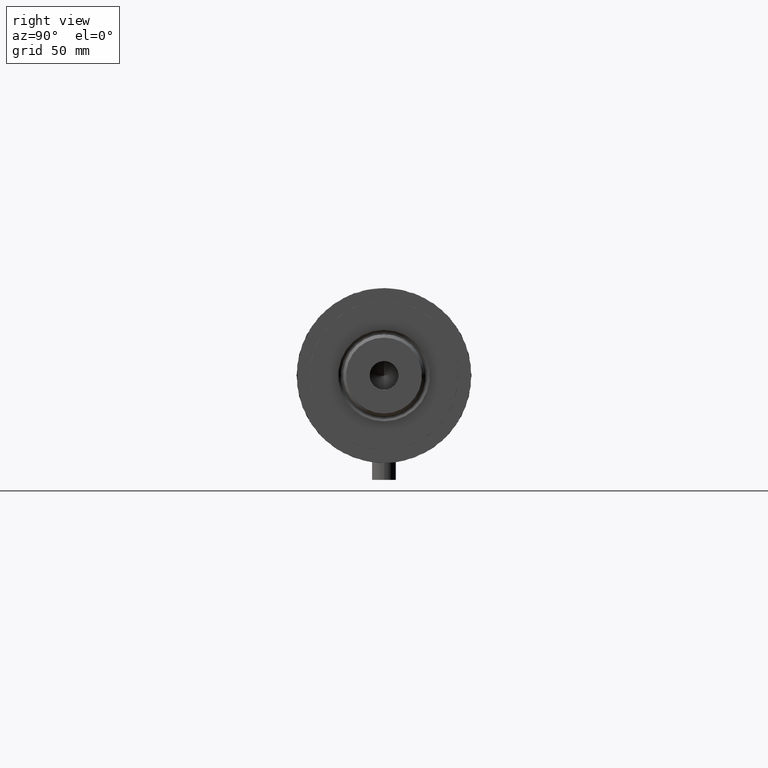
[diagram: clean part render]
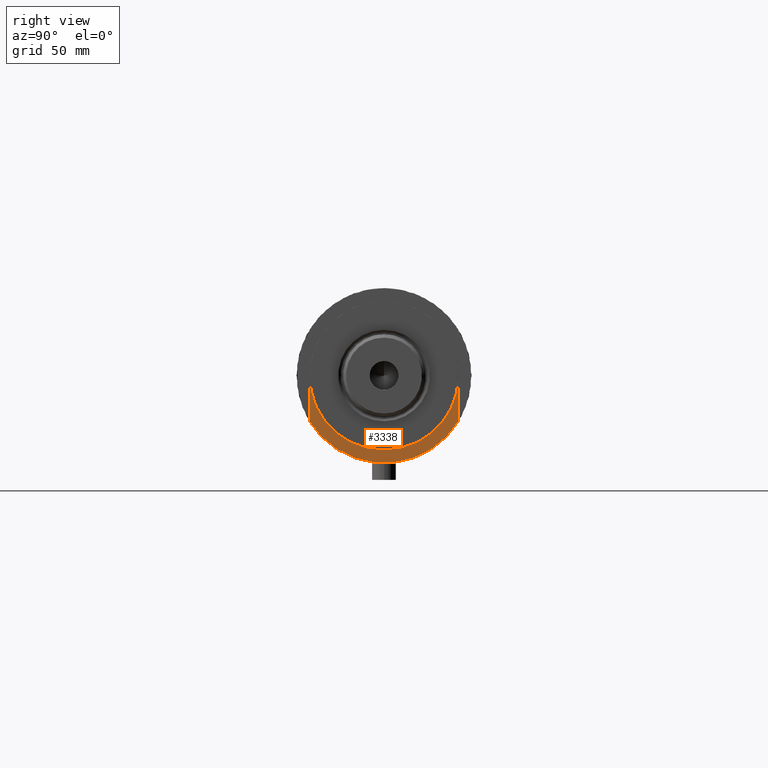
[diagram: same view with one face highlighted and labeled with its STEP entity id]
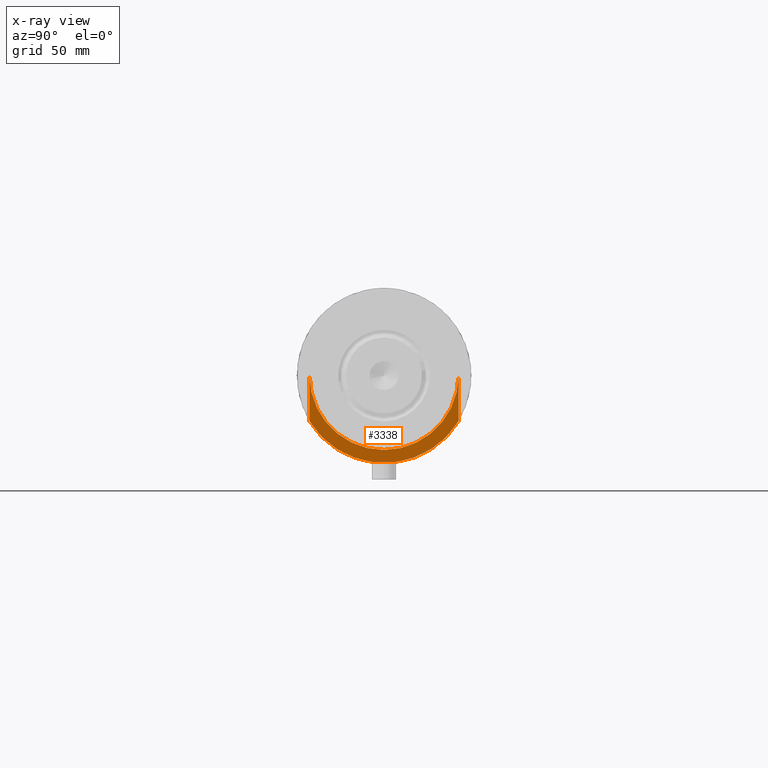
[diagram: x-ray of the same camera — body ghosted, the highlighted face saturated]
A machine part, right view. The second image highlights one B-rep face of the part: STEP entity #3338.
The next image is the same camera in x-ray: the body ghosted, the highlighted face saturated — about 0% of this face is hidden behind the body in this view.
In plain terms, the highlighted planar face has unit normal (1, 0, -0).
Its self-contained STEP definition (entity closure, byte-faithful):
#49 = CIRCLE ( 'NONE', #2913, 44.00000000000000000 ) ;
#72 = ORIENTED_EDGE ( 'NONE', *, *, #2926, .T. ) ;
#100 = CARTESIAN_POINT ( 'NONE',  ( -23.01629857296780557, -37.50000000000000000, 27.89999999999999858 ) ) ;
#135 = CARTESIAN_POINT ( 'NONE',  ( 23.01629857296780557, 37.50000000000000000, 27.89999999999999858 ) ) ;
#242 = EDGE_CURVE ( 'NONE', #4375, #1506, #1234, .T. ) ;
#333 = DIRECTION ( 'NONE',  ( 0.000000000000000000, 0.000000000000000000, 1.000000000000000000 ) ) ;
#379 = CARTESIAN_POINT ( 'NONE',  ( 0.000000000000000000, 37.50000000000000000, 27.89999999999999858 ) ) ;
#421 = DIRECTION ( 'NONE',  ( 1.000000000000000000, 0.000000000000000000, 0.000000000000000000 ) ) ;
#455 = VERTEX_POINT ( 'NONE', #3279 ) ;
#572 = AXIS2_PLACEMENT_3D ( 'NONE', #689, #333, #635 ) ;
#635 = DIRECTION ( 'NONE',  ( 1.000000000000000000, 0.000000000000000000, -0.000000000000000000 ) ) ;
#639 = DIRECTION ( 'NONE',  ( 1.000000000000000000, 0.000000000000000000, 0.000000000000000000 ) ) ;
#689 = CARTESIAN_POINT ( 'NONE',  ( 0.000000000000000000, 0.000000000000000000, 27.89999999999999858 ) ) ;
#714 = ORIENTED_EDGE ( 'NONE', *, *, #4322, .T. ) ;
#793 = CARTESIAN_POINT ( 'NONE',  ( 0.000000000000000000, 0.000000000000000000, 27.89999999999999858 ) ) ;
#918 = DIRECTION ( 'NONE',  ( 1.000000000000000000, 0.000000000000000000, 0.000000000000000000 ) ) ;
#1081 = PLANE ( 'NONE',  #572 ) ;
#1173 = EDGE_CURVE ( 'NONE', #4375, #4109, #3411, .T. ) ;
#1234 = CIRCLE ( 'NONE', #4521, 37.50000000000000000 ) ;
#1327 = AXIS2_PLACEMENT_3D ( 'NONE', #2654, #4060, #918 ) ;
#1410 = ORIENTED_EDGE ( 'NONE', *, *, #1173, .F. ) ;
#1426 = FACE_OUTER_BOUND ( 'NONE', #3452, .T. ) ;
#1506 = VERTEX_POINT ( 'NONE', #3105 ) ;
#1509 = ORIENTED_EDGE ( 'NONE', *, *, #242, .T. ) ;
#1537 = DIRECTION ( 'NONE',  ( -1.000000000000000000, -0.000000000000000000, -0.000000000000000000 ) ) ;
#1581 = ORIENTED_EDGE ( 'NONE', *, *, #2816, .F. ) ;
#1599 = CARTESIAN_POINT ( 'NONE',  ( 0.000000000000000000, 0.000000000000000000, 27.89999999999999858 ) ) ;
#1976 = VERTEX_POINT ( 'NONE', #4179 ) ;
#2523 = LINE ( 'NONE', #100, #3948 ) ;
#2597 = DIRECTION ( 'NONE',  ( -0.000000000000000000, -0.000000000000000000, -1.000000000000000000 ) ) ;
#2654 = CARTESIAN_POINT ( 'NONE',  ( 0.000000000000000000, 0.000000000000000000, 27.89999999999999858 ) ) ;
#2816 = EDGE_CURVE ( 'NONE', #455, #1976, #2523, .T. ) ;
#2896 = DIRECTION ( 'NONE',  ( 0.000000000000000000, 0.000000000000000000, 1.000000000000000000 ) ) ;
#2913 = AXIS2_PLACEMENT_3D ( 'NONE', #793, #2896, #421 ) ;
#2926 = EDGE_CURVE ( 'NONE', #455, #4109, #49, .T. ) ;
#3105 = CARTESIAN_POINT ( 'NONE',  ( 37.50000000000000000, 0.000000000000000000, 27.89999999999999858 ) ) ;
#3279 = CARTESIAN_POINT ( 'NONE',  ( 23.01629857296780557, -37.50000000000000000, 27.89999999999999858 ) ) ;
#3338 = ADVANCED_FACE ( 'NONE', ( #1426 ), #1081, .T. ) ;
#3375 = DIRECTION ( 'NONE',  ( 1.000000000000000000, 0.000000000000000000, 0.000000000000000000 ) ) ;
#3411 = LINE ( 'NONE', #4195, #3571 ) ;
#3452 = EDGE_LOOP ( 'NONE', ( #1410, #1509, #714, #1581, #72 ) ) ;
#3571 = VECTOR ( 'NONE', #639, 1000.000000000000000 ) ;
#3948 = VECTOR ( 'NONE', #1537, 1000.000000000000000 ) ;
#4060 = DIRECTION ( 'NONE',  ( -0.000000000000000000, -0.000000000000000000, -1.000000000000000000 ) ) ;
#4109 = VERTEX_POINT ( 'NONE', #135 ) ;
#4179 = CARTESIAN_POINT ( 'NONE',  ( 0.000000000000000000, -37.50000000000000000, 27.89999999999999858 ) ) ;
#4185 = CIRCLE ( 'NONE', #1327, 37.50000000000000000 ) ;
#4195 = CARTESIAN_POINT ( 'NONE',  ( -23.01629857296780557, 37.50000000000000000, 27.89999999999999858 ) ) ;
#4322 = EDGE_CURVE ( 'NONE', #1506, #1976, #4185, .T. ) ;
#4375 = VERTEX_POINT ( 'NONE', #379 ) ;
#4521 = AXIS2_PLACEMENT_3D ( 'NONE', #1599, #2597, #3375 ) ;